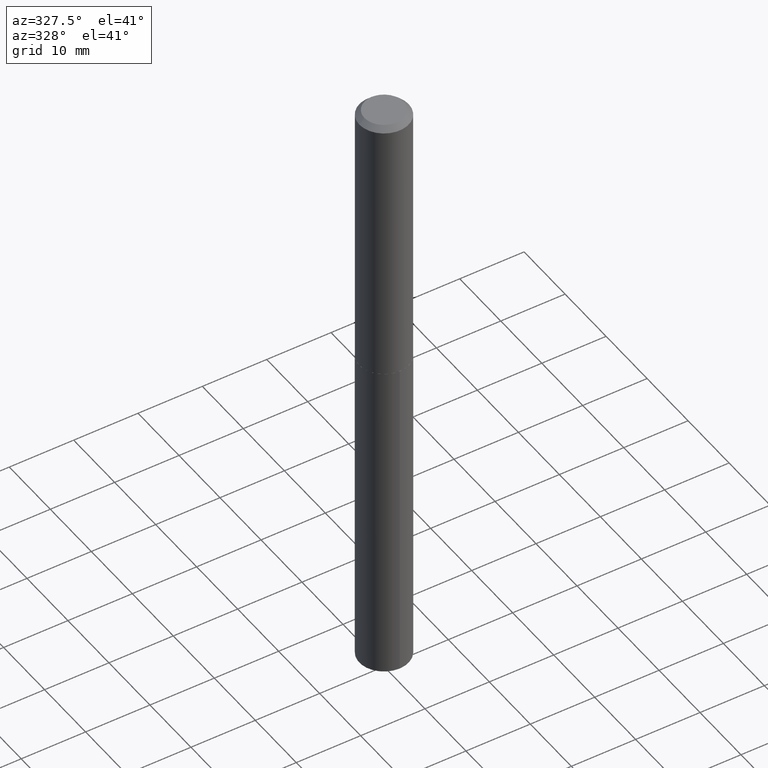
[diagram: clean part render]
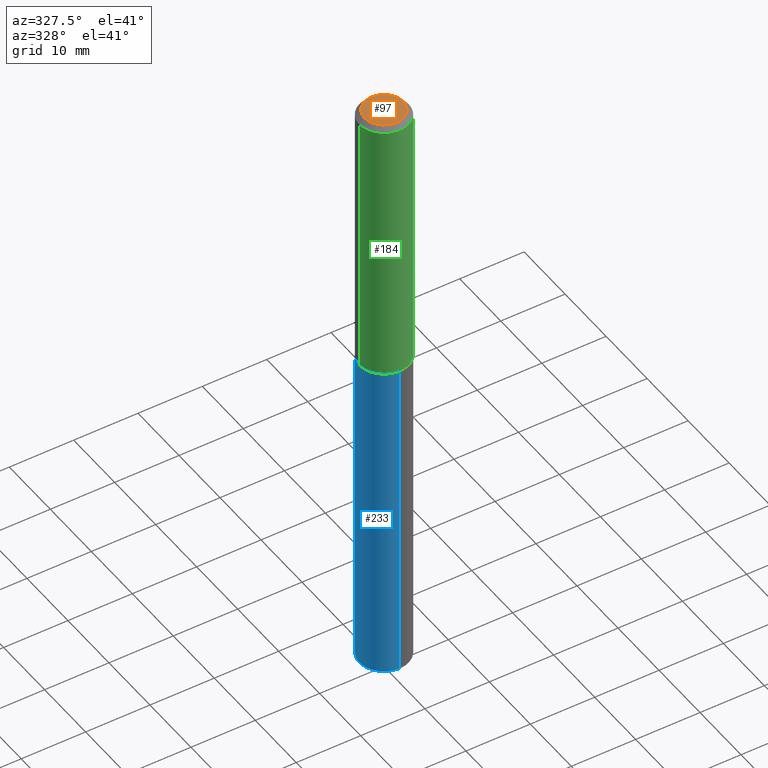
[diagram: same view with three faces highlighted in distinct colors, each labeled with its STEP entity id]
A machine part, auxiliary view with three faces highlighted in distinct colors.
Their STEP definitions:

[orange] entity #97 — the highlighted planar face has unit normal (0, -0, -1).
#11 = DIRECTION ( 'NONE',  ( -2.445468806185136597E-29, 3.491481338843145583E-15, 1.000000000000000000 ) ) ;
#14 = EDGE_LOOP ( 'NONE', ( #134, #77 ) ) ;
#16 = EDGE_CURVE ( 'NONE', #185, #73, #54, .T. ) ;
#23 = AXIS2_PLACEMENT_3D ( 'NONE', #295, #246, #239 ) ;
#54 = CIRCLE ( 'NONE', #205, 0.1197499999999999953 ) ;
#73 = VERTEX_POINT ( 'NONE', #165 ) ;
#77 = ORIENTED_EDGE ( 'NONE', *, *, #16, .T. ) ;
#92 = CIRCLE ( 'NONE', #23, 0.1197499999999999953 ) ;
#97 = ADVANCED_FACE ( 'NONE', ( #111 ), #226, .F. ) ;
#108 = CARTESIAN_POINT ( 'NONE',  ( 0.1197499999999999953, -9.832943123677455583E-16, 3.122849337889354629E-19 ) ) ;
#111 = FACE_OUTER_BOUND ( 'NONE', #14, .T. ) ;
#128 = DIRECTION ( 'NONE',  ( 1.000000000000000000, -6.982962677686267499E-15, 4.876174640205639885E-29 ) ) ;
#134 = ORIENTED_EDGE ( 'NONE', *, *, #197, .T. ) ;
#157 = AXIS2_PLACEMENT_3D ( 'NONE', #259, #359, #321 ) ;
#165 = CARTESIAN_POINT ( 'NONE',  ( -0.1197499999999999953, 8.907641765723537504E-16, 3.122849337765353630E-19 ) ) ;
#185 = VERTEX_POINT ( 'NONE', #108 ) ;
#197 = EDGE_CURVE ( 'NONE', #73, #185, #92, .T. ) ;
#205 = AXIS2_PLACEMENT_3D ( 'NONE', #280, #11, #128 ) ;
#226 = PLANE ( 'NONE',  #157 ) ;
#239 = DIRECTION ( 'NONE',  ( 1.000000000000000000, -6.982962677686267499E-15, 4.876174640205639885E-29 ) ) ;
#246 = DIRECTION ( 'NONE',  ( -2.445468806185136597E-29, 3.491481338843145583E-15, 1.000000000000000000 ) ) ;
#259 = CARTESIAN_POINT ( 'NONE',  ( -3.818415321034376769E-48, 5.451685093518621042E-34, 1.561424668912869378E-19 ) ) ;
#280 = CARTESIAN_POINT ( 'NONE',  ( -7.636830642068753538E-48, 1.090337018703724208E-33, 3.122849337825738756E-19 ) ) ;
#295 = CARTESIAN_POINT ( 'NONE',  ( -7.636830642068753538E-48, 1.090337018703724208E-33, 3.122849337825738756E-19 ) ) ;
#321 = DIRECTION ( 'NONE',  ( -1.000000000000000000, 6.982962677686265922E-15, -4.876176775795935793E-29 ) ) ;
#359 = DIRECTION ( 'NONE',  ( 2.438088387897960049E-29, -3.491481338843145188E-15, -1.000000000000000000 ) ) ;

[blue] entity #233 — the highlighted cylindrical surface (edge-blend (fillet) strip) has radius 3.8354 mm, axis along (-0, 0, 1).
#8 = EDGE_CURVE ( 'NONE', #70, #251, #219, .T. ) ;
#30 = CYLINDRICAL_SURFACE ( 'NONE', #242, 0.1509999999999999953 ) ;
#32 = DIRECTION ( 'NONE',  ( -2.445535815285872487E-29, 3.491385377996970699E-15, 1.000000000000000000 ) ) ;
#41 = CIRCLE ( 'NONE', #231, 0.1509999999999999953 ) ;
#45 = CIRCLE ( 'NONE', #229, 0.1509999999999999953 ) ;
#50 = DIRECTION ( 'NONE',  ( -2.445535815285872767E-29, 3.491385377996970699E-15, 1.000000000000000000 ) ) ;
#51 = DIRECTION ( 'NONE',  ( -2.445535815285872487E-29, 3.491385377996970699E-15, 1.000000000000000000 ) ) ;
#62 = VERTEX_POINT ( 'NONE', #138 ) ;
#66 = ORIENTED_EDGE ( 'NONE', *, *, #275, .T. ) ;
#70 = VERTEX_POINT ( 'NONE', #169 ) ;
#71 = DIRECTION ( 'NONE',  ( -2.445535815285872767E-29, 3.491385377996970699E-15, 1.000000000000000000 ) ) ;
#80 = CARTESIAN_POINT ( 'NONE',  ( 1.072919530997842164E-15, 0.1509999999999941389, -1.677000000000000712 ) ) ;
#85 = VECTOR ( 'NONE', #71, 39.37007874015748143 ) ;
#87 = FACE_OUTER_BOUND ( 'NONE', #296, .T. ) ;
#88 = EDGE_CURVE ( 'NONE', #62, #164, #358, .T. ) ;
#117 = DIRECTION ( 'NONE',  ( -6.982962677686265133E-15, -1.000000000000000000, 3.618341713462600054E-15 ) ) ;
#123 = DIRECTION ( 'NONE',  ( -2.445535815285872487E-29, 3.491385377996970699E-15, 1.000000000000000000 ) ) ;
#138 = CARTESIAN_POINT ( 'NONE',  ( 1.072919530997841769E-15, 0.1509999999999870335, -3.709539671942902128 ) ) ;
#148 = CARTESIAN_POINT ( 'NONE',  ( 4.101051187972474781E-29, -5.855214205239955684E-15, -1.677000000000000268 ) ) ;
#162 = ORIENTED_EDGE ( 'NONE', *, *, #88, .F. ) ;
#164 = VERTEX_POINT ( 'NONE', #80 ) ;
#169 = CARTESIAN_POINT ( 'NONE',  ( -1.054427364330535302E-15, -0.1510000000000129294, -3.709539671942900796 ) ) ;
#173 = DIRECTION ( 'NONE',  ( -6.982962677686265133E-15, -1.000000000000000000, 3.618341713462600054E-15 ) ) ;
#174 = EDGE_CURVE ( 'NONE', #164, #251, #41, .T. ) ;
#182 = CARTESIAN_POINT ( 'NONE',  ( 9.071699751698236778E-29, -1.295159349606016009E-14, -3.709539671942901684 ) ) ;
#219 = LINE ( 'NONE', #343, #85 ) ;
#229 = AXIS2_PLACEMENT_3D ( 'NONE', #182, #123, #339 ) ;
#231 = AXIS2_PLACEMENT_3D ( 'NONE', #328, #51, #173 ) ;
#233 = ADVANCED_FACE ( 'NONE', ( #87 ), #30, .T. ) ;
#242 = AXIS2_PLACEMENT_3D ( 'NONE', #148, #32, #117 ) ;
#251 = VERTEX_POINT ( 'NONE', #363 ) ;
#257 = CARTESIAN_POINT ( 'NONE',  ( 1.072919530997792071E-15, 0.1509999999999941389, -1.677000000000000712 ) ) ;
#275 = EDGE_CURVE ( 'NONE', #62, #70, #45, .T. ) ;
#278 = ORIENTED_EDGE ( 'NONE', *, *, #174, .F. ) ;
#296 = EDGE_LOOP ( 'NONE', ( #162, #66, #311, #278 ) ) ;
#311 = ORIENTED_EDGE ( 'NONE', *, *, #8, .T. ) ;
#328 = CARTESIAN_POINT ( 'NONE',  ( 4.101051187972474781E-29, -5.855214205239955684E-15, -1.677000000000000268 ) ) ;
#339 = DIRECTION ( 'NONE',  ( -6.982962677686265133E-15, -1.000000000000000000, 3.618341713462600054E-15 ) ) ;
#343 = CARTESIAN_POINT ( 'NONE',  ( -1.054427364330585000E-15, -0.1510000000000058518, -1.676999999999999602 ) ) ;
#346 = VECTOR ( 'NONE', #50, 39.37007874015748143 ) ;
#358 = LINE ( 'NONE', #257, #346 ) ;
#363 = CARTESIAN_POINT ( 'NONE',  ( -1.054427364330585000E-15, -0.1510000000000058518, -1.676999999999999602 ) ) ;

[green] entity #184 — the highlighted cylindrical surface (edge-blend (fillet) strip) has radius 3.8354 mm, axis along (-0, 0, 1).
#10 = EDGE_CURVE ( 'NONE', #37, #369, #39, .T. ) ;
#37 = VERTEX_POINT ( 'NONE', #143 ) ;
#39 = LINE ( 'NONE', #344, #171 ) ;
#40 = VERTEX_POINT ( 'NONE', #200 ) ;
#46 = DIRECTION ( 'NONE',  ( 1.000000000000000000, -6.982962677686265133E-15, 0.000000000000000000 ) ) ;
#58 = DIRECTION ( 'NONE',  ( -2.445468806185136597E-29, 3.491481338843145583E-15, 1.000000000000000000 ) ) ;
#81 = EDGE_CURVE ( 'NONE', #40, #99, #84, .T. ) ;
#84 = LINE ( 'NONE', #196, #366 ) ;
#96 = ORIENTED_EDGE ( 'NONE', *, *, #10, .F. ) ;
#98 = EDGE_LOOP ( 'NONE', ( #96, #303, #222, #379 ) ) ;
#99 = VERTEX_POINT ( 'NONE', #387 ) ;
#107 = AXIS2_PLACEMENT_3D ( 'NONE', #332, #58, #301 ) ;
#143 = CARTESIAN_POINT ( 'NONE',  ( -0.1510000000000001896, -4.780548933572781158E-15, -1.676500000000000323 ) ) ;
#144 = EDGE_CURVE ( 'NONE', #369, #99, #179, .T. ) ;
#156 = DIRECTION ( 'NONE',  ( -2.445468806185136877E-29, 3.491481338843145188E-15, 1.000000000000000000 ) ) ;
#171 = VECTOR ( 'NONE', #156, 39.37007874015748143 ) ;
#176 = FACE_OUTER_BOUND ( 'NONE', #98, .T. ) ;
#179 = CIRCLE ( 'NONE', #214, 0.1509999999999999953 ) ;
#184 = ADVANCED_FACE ( 'NONE', ( #176 ), #298, .T. ) ;
#192 = AXIS2_PLACEMENT_3D ( 'NONE', #228, #198, #322 ) ;
#196 = CARTESIAN_POINT ( 'NONE',  ( 0.1510000000000001064, -1.054427364330627007E-15, 7.363026931451867700E-30 ) ) ;
#198 = DIRECTION ( 'NONE',  ( -2.445468806185136597E-29, 3.491481338843145583E-15, 1.000000000000000000 ) ) ;
#200 = CARTESIAN_POINT ( 'NONE',  ( 0.1510000000000001896, -6.907895828901161779E-15, -1.676500000000000323 ) ) ;
#207 = CARTESIAN_POINT ( 'NONE',  ( 7.642090019328601786E-31, -1.091087918388490144E-16, -0.03125000000000020123 ) ) ;
#214 = AXIS2_PLACEMENT_3D ( 'NONE', #207, #323, #46 ) ;
#222 = ORIENTED_EDGE ( 'NONE', *, *, #81, .T. ) ;
#228 = CARTESIAN_POINT ( 'NONE',  ( 0.000000000000000000, 0.000000000000000000, 0.000000000000000000 ) ) ;
#293 = DIRECTION ( 'NONE',  ( -2.445468806185136877E-29, 3.491481338843145188E-15, 1.000000000000000000 ) ) ;
#298 = CYLINDRICAL_SURFACE ( 'NONE', #192, 0.1510000000000001064 ) ;
#301 = DIRECTION ( 'NONE',  ( 1.000000000000000000, -6.982962677686266711E-15, 0.000000000000000000 ) ) ;
#303 = ORIENTED_EDGE ( 'NONE', *, *, #341, .T. ) ;
#322 = DIRECTION ( 'NONE',  ( 1.000000000000000000, -6.982962677686266711E-15, 4.876176775795935232E-29 ) ) ;
#323 = DIRECTION ( 'NONE',  ( -2.445468806185136597E-29, 3.491481338843145583E-15, 1.000000000000000000 ) ) ;
#332 = CARTESIAN_POINT ( 'NONE',  ( 4.099828453569381980E-29, -5.853468464570534180E-15, -1.676500000000000323 ) ) ;
#341 = EDGE_CURVE ( 'NONE', #37, #40, #390, .T. ) ;
#344 = CARTESIAN_POINT ( 'NONE',  ( -0.1510000000000001064, 1.072919530997752036E-15, -7.427591986284911817E-30 ) ) ;
#365 = CARTESIAN_POINT ( 'NONE',  ( -0.1509999999999999953, -1.908369097206939012E-15, -0.03125000000000020123 ) ) ;
#366 = VECTOR ( 'NONE', #293, 39.37007874015748143 ) ;
#369 = VERTEX_POINT ( 'NONE', #365 ) ;
#379 = ORIENTED_EDGE ( 'NONE', *, *, #144, .F. ) ;
#387 = CARTESIAN_POINT ( 'NONE',  ( 0.1509999999999999953, -1.163536156169475122E-15, -0.03125000000000020123 ) ) ;
#390 = CIRCLE ( 'NONE', #107, 0.1510000000000001896 ) ;